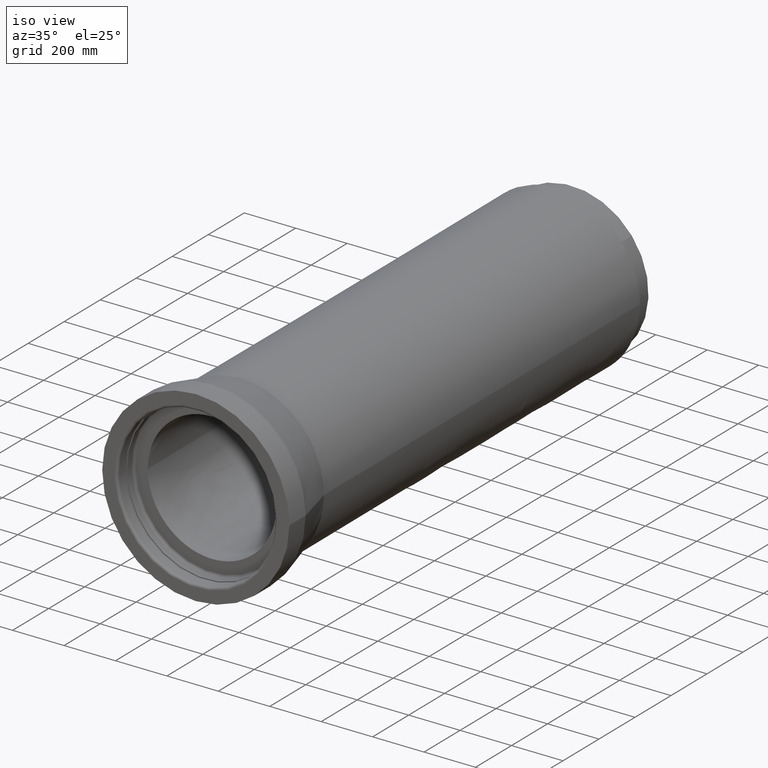
[diagram: clean part render]
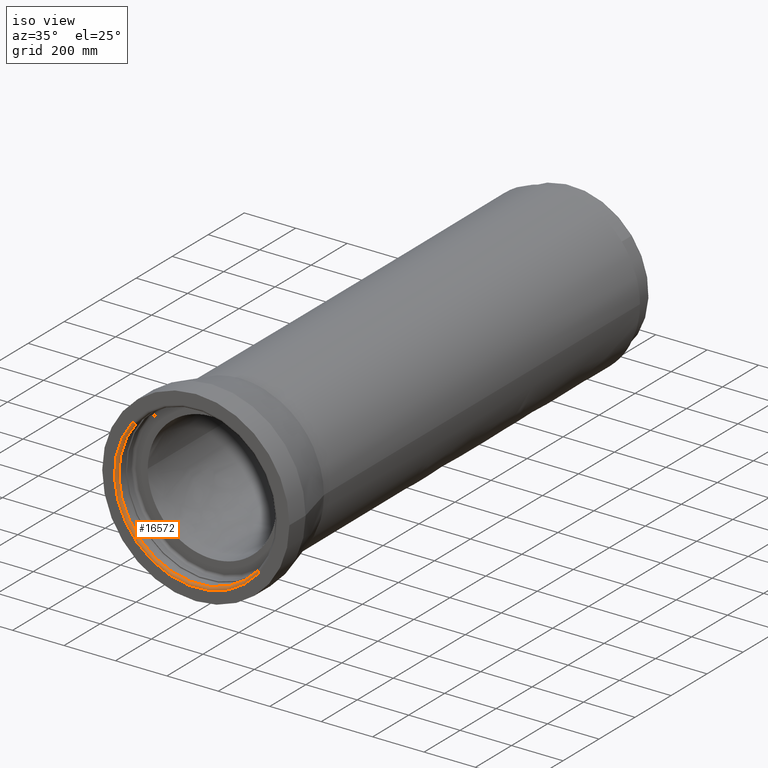
[diagram: same view with one face highlighted and labeled with its STEP entity id]
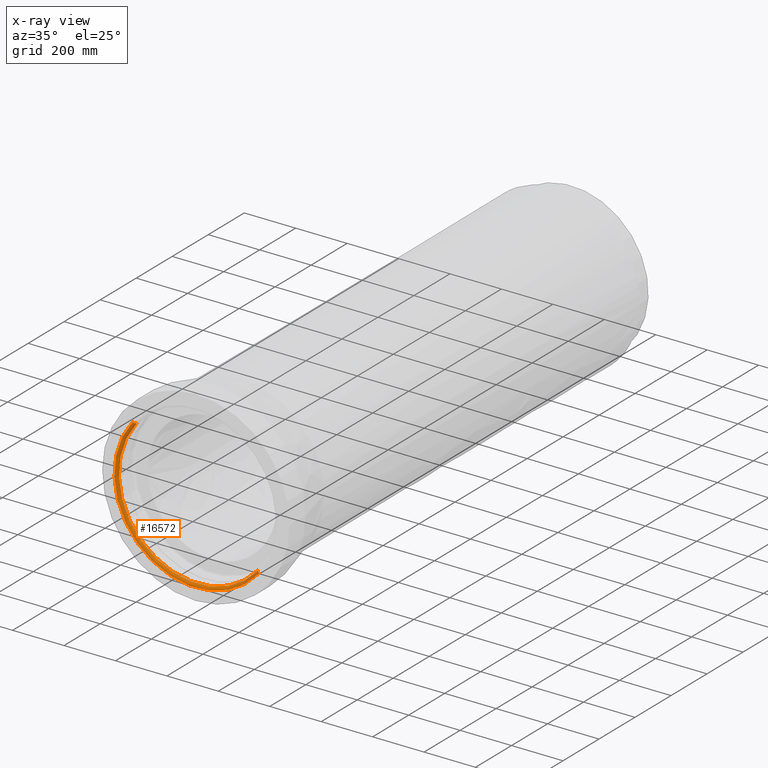
[diagram: x-ray of the same camera — body ghosted, the highlighted face saturated]
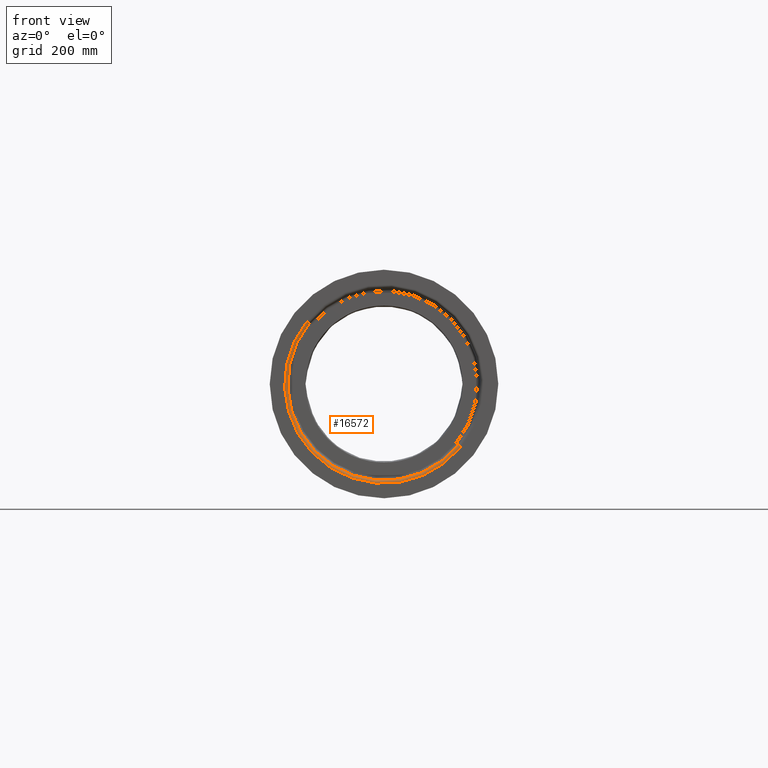
[diagram: same view with one face highlighted and labeled with its STEP entity id]
A machine part, iso view. The second image highlights one B-rep face of the part: STEP entity #16572.
The next image is the same camera in x-ray: the body ghosted, the highlighted face saturated — about 0% of this face is hidden behind the body in this view.
A second angle (front view) of the same face is appended — the face is thin or edge-on in the first view.
In plain terms, the highlighted toroidal blend (fillet) surface has major radius 316.5 mm and minor (blend) radius 10 mm.
Its self-contained STEP definition (entity closure, byte-faithful):
#81 = DIRECTION ( 'NONE',  ( -1.120721524397767776E-17, -1.878791000115572287E-16, 1.000000000000000000 ) ) ;
#328 = EDGE_CURVE ( 'NONE', #6980, #19076, #15504, .T. ) ;
#2013 = DIRECTION ( 'NONE',  ( 0.7746282087706404251, 0.6324169021909432642, 1.274993434854808828E-16 ) ) ;
#3230 = ORIENTED_EDGE ( 'NONE', *, *, #11620, .T. ) ;
#4419 = CARTESIAN_POINT ( 'NONE',  ( 245.1698280759077022, 200.1599495434335836, -79.99999999999997158 ) ) ;
#4892 = CARTESIAN_POINT ( 'NONE',  ( -245.1698280759077306, -200.1599495434334983, -80.00000000000005684 ) ) ;
#6203 = AXIS2_PLACEMENT_3D ( 'NONE', #4419, #18690, #13006 ) ;
#6654 = VERTEX_POINT ( 'NONE', #18993 ) ;
#6980 = VERTEX_POINT ( 'NONE', #13665 ) ;
#7291 = AXIS2_PLACEMENT_3D ( 'NONE', #4892, #20336, #15468 ) ;
#7917 = EDGE_CURVE ( 'NONE', #6980, #6654, #21794, .T. ) ;
#9199 = DIRECTION ( 'NONE',  ( -1.120721524397767776E-17, -1.878791000115572287E-16, 1.000000000000000000 ) ) ;
#9765 = ORIENTED_EDGE ( 'NONE', *, *, #328, .F. ) ;
#10627 = CARTESIAN_POINT ( 'NONE',  ( 0.0000000000000000000, 1.503032800092458382E-14, -80.00000000000001421 ) ) ;
#11053 = CARTESIAN_POINT ( 'NONE',  ( 0.0000000000000000000, 1.978344509111479470E-14, -80.00000000000001421 ) ) ;
#11620 = EDGE_CURVE ( 'NONE', #6654, #14386, #21377, .T. ) ;
#11798 = AXIS2_PLACEMENT_3D ( 'NONE', #10627, #81, #18034 ) ;
#11889 = ORIENTED_EDGE ( 'NONE', *, *, #18137, .F. ) ;
#11963 = CIRCLE ( 'NONE', #21220, 316.5000000000000000 ) ;
#13006 = DIRECTION ( 'NONE',  ( 0.7746282087706396480, 0.6324169021909441524, 0.0000000000000000000 ) ) ;
#13665 = CARTESIAN_POINT ( 'NONE',  ( 237.4235459882012833, 193.8357805215241285, -79.99999999999997158 ) ) ;
#14091 = FACE_OUTER_BOUND ( 'NONE', #14728, .T. ) ;
#14386 = VERTEX_POINT ( 'NONE', #16022 ) ;
#14728 = EDGE_LOOP ( 'NONE', ( #22258, #3230, #11889, #9765 ) ) ;
#14927 = TOROIDAL_SURFACE ( 'NONE', #19379, 316.5000000000000000, 10.00000000000000178 ) ;
#15468 = DIRECTION ( 'NONE',  ( -0.7746282087706407582, -0.6324169021909428201, 0.0000000000000000000 ) ) ;
#15504 = CIRCLE ( 'NONE', #6203, 9.999999999999992895 ) ;
#15744 = CARTESIAN_POINT ( 'NONE',  ( 245.1698280759077022, 200.1599495434335836, -89.99999999999997158 ) ) ;
#16022 = CARTESIAN_POINT ( 'NONE',  ( -245.1698280759077306, -200.1599495434334983, -90.00000000000005684 ) ) ;
#16253 = DIRECTION ( 'NONE',  ( -1.120721524397767776E-17, -1.878791000115572287E-16, 1.000000000000000000 ) ) ;
#16476 = CARTESIAN_POINT ( 'NONE',  ( 0.0000000000000000000, 1.690911900104014930E-14, -90.00000000000001421 ) ) ;
#16572 = ADVANCED_FACE ( 'NONE', ( #14091 ), #14927, .T. ) ;
#18034 = DIRECTION ( 'NONE',  ( 0.7746282087706404251, 0.6324169021909433752, 1.358347909410876709E-16 ) ) ;
#18137 = EDGE_CURVE ( 'NONE', #19076, #14386, #11963, .T. ) ;
#18690 = DIRECTION ( 'NONE',  ( 0.6324169021909432642, -0.7746282087706404251, -1.384488183606091135E-16 ) ) ;
#18993 = CARTESIAN_POINT ( 'NONE',  ( -237.4235459882013117, -193.8357805215240717, -80.00000000000005684 ) ) ;
#19076 = VERTEX_POINT ( 'NONE', #15744 ) ;
#19379 = AXIS2_PLACEMENT_3D ( 'NONE', #11053, #9199, #2013 ) ;
#20336 = DIRECTION ( 'NONE',  ( -0.6324169021909431532, 0.7746282087706405362, 1.384488183606091135E-16 ) ) ;
#21220 = AXIS2_PLACEMENT_3D ( 'NONE', #16476, #16253, #22042 ) ;
#21377 = CIRCLE ( 'NONE', #7291, 10.00000000000001421 ) ;
#21794 = CIRCLE ( 'NONE', #11798, 306.5000000000000000 ) ;
#22042 = DIRECTION ( 'NONE',  ( 0.7746282087706404251, 0.6324169021909432642, 1.315430123963455640E-16 ) ) ;
#22258 = ORIENTED_EDGE ( 'NONE', *, *, #7917, .T. ) ;